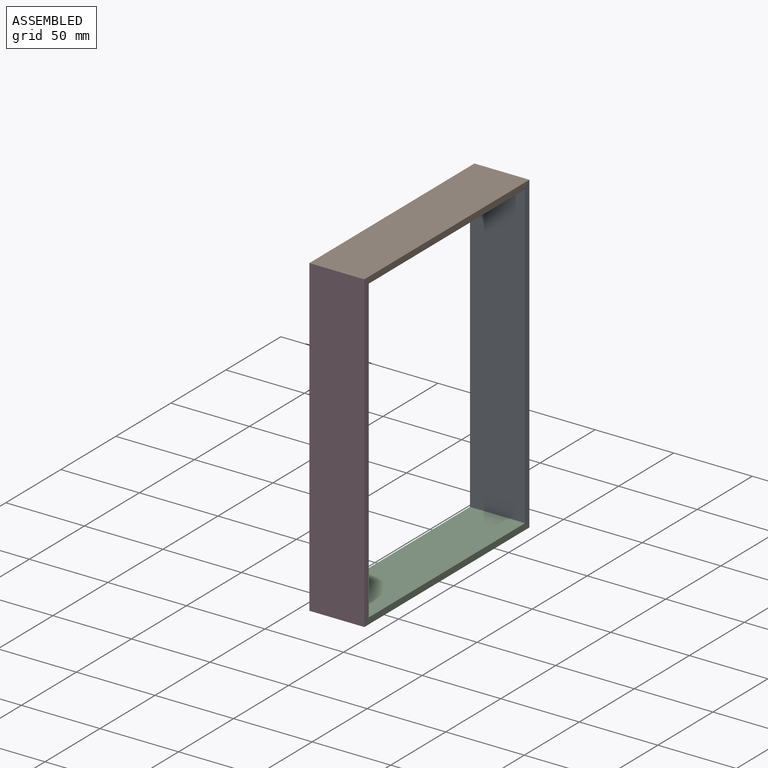
[diagram: assembled view]
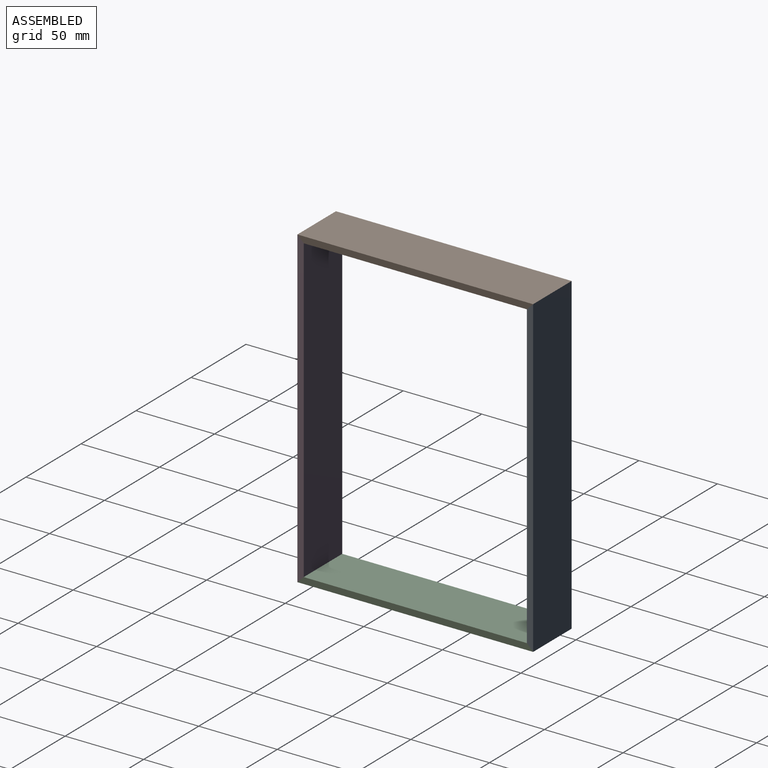
[diagram: assembled view, second angle]
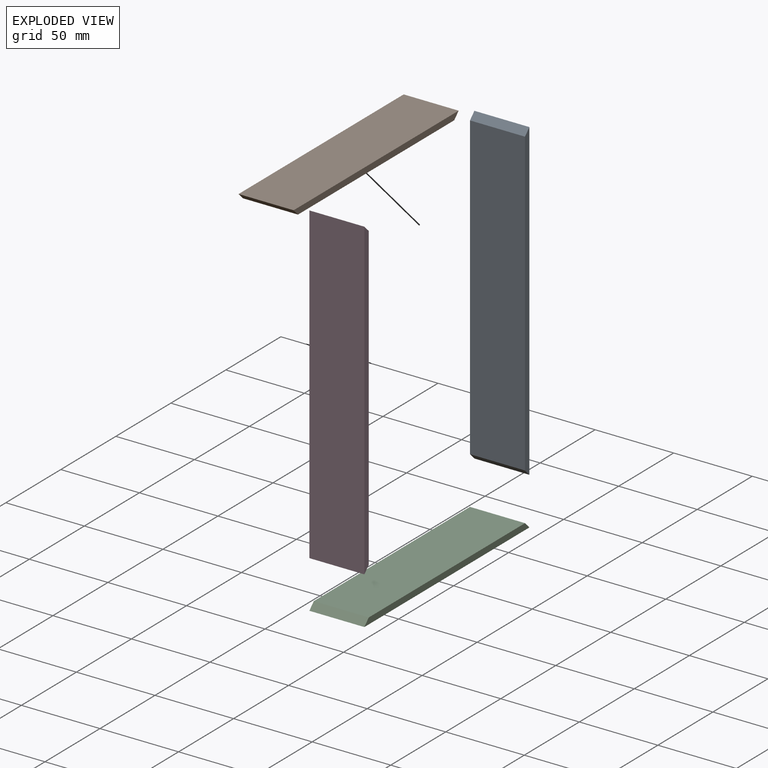
[diagram: exploded view]
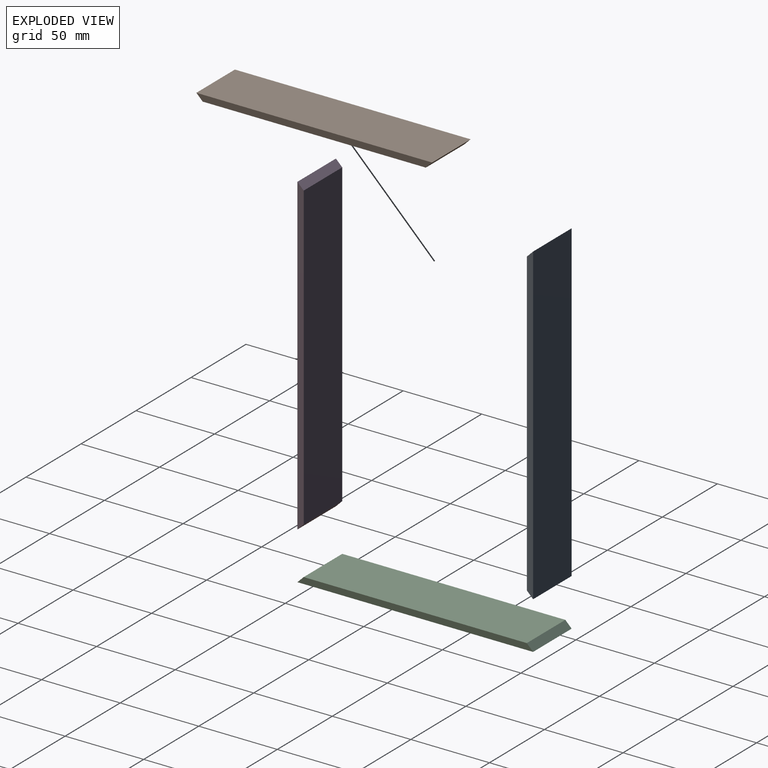
[diagram: exploded view, second angle]
ASSEMBLY  parts=4 mates=3
PART A: 6 faces, bbox 35x4x200 mm
  f0: plane 200x4mm, normal (1,0,0), area 784mm2, adj f2,f3,f4,f5
  f1: plane 200x4mm, normal (-1,0,0), area 784mm2, adj f2,f3,f4,f5
  f2: plane 200x35mm, normal (0,-1,0), area 7000mm2, adj f0,f1,f4,f5
  f3: plane 192x35mm, normal (0,1,0), area 6720mm2, adj f0,f1,f4,f5
  f4: plane 35x4mm, normal (0,0.71,0.71), area 198mm2, adj f0,f1,f2,f3
  f5: plane 35x4mm, normal (0,0.71,-0.71), area 198mm2, adj f0,f1,f2,f3
PART B: 6 faces, bbox 35x150x4 mm
  f0: plane 150x4mm, normal (1,0,0), area 584mm2, adj f2,f3,f4,f5
  f1: plane 150x4mm, normal (-1,0,0), area 584mm2, adj f2,f3,f4,f5
  f2: plane 150x35mm, normal (0,0,1), area 5250mm2, adj f0,f1,f4,f5
  f3: plane 142x35mm, normal (0,0,-1), area 4970mm2, adj f0,f1,f4,f5
  f4: plane 35x4mm, normal (0,-0.71,-0.71), area 198mm2, adj f0,f1,f2,f3
  f5: plane 35x4mm, normal (0,0.71,-0.71), area 198mm2, adj f0,f1,f2,f3
PART C: same geometry as B
PART D: same geometry as A
PLACE A rot(axis=(0,0,-1),180deg) t=(-188.8,23.89,1.05)mm
PLACE B t=(-188.8,-47.11,97.05)mm
PLACE C rot(axis=(1,0,0),180deg) t=(-188.8,-47.11,-94.95)mm
PLACE D t=(-188.8,-118.11,1.05)mm fixed
MATE fastened C.f4 <-> A.f5  axis (0,0.71,0.71) through (-188.8,25.89,-96.95)mm
MATE fastened B.f5 <-> A.f4  axis (0,0.71,-0.71) through (-188.8,25.89,99.05)mm
MATE fastened B.f4 <-> D.f4  axis (0,-0.71,-0.71) through (-188.8,-120.11,99.05)mm
